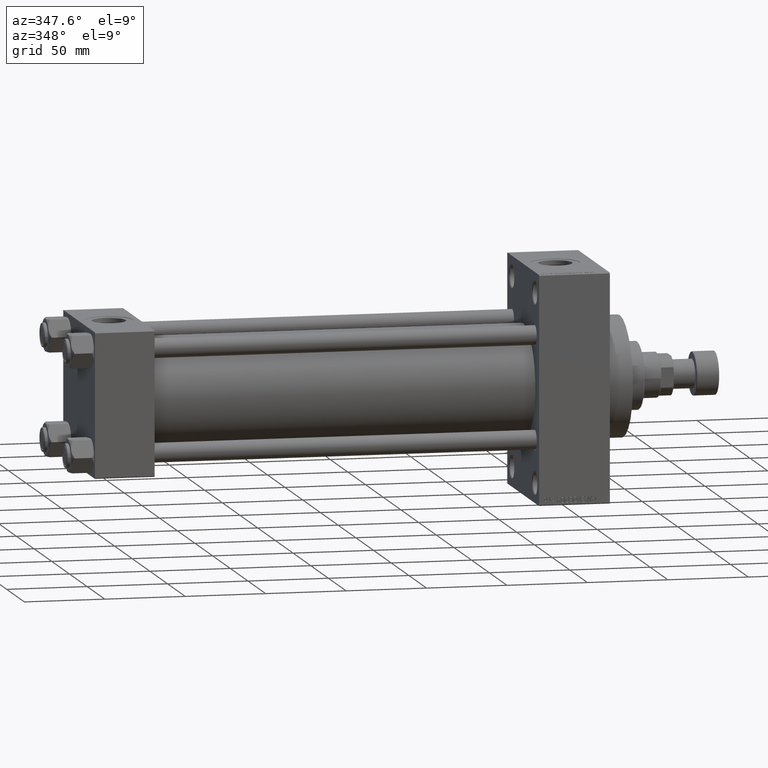
[diagram: clean part render]
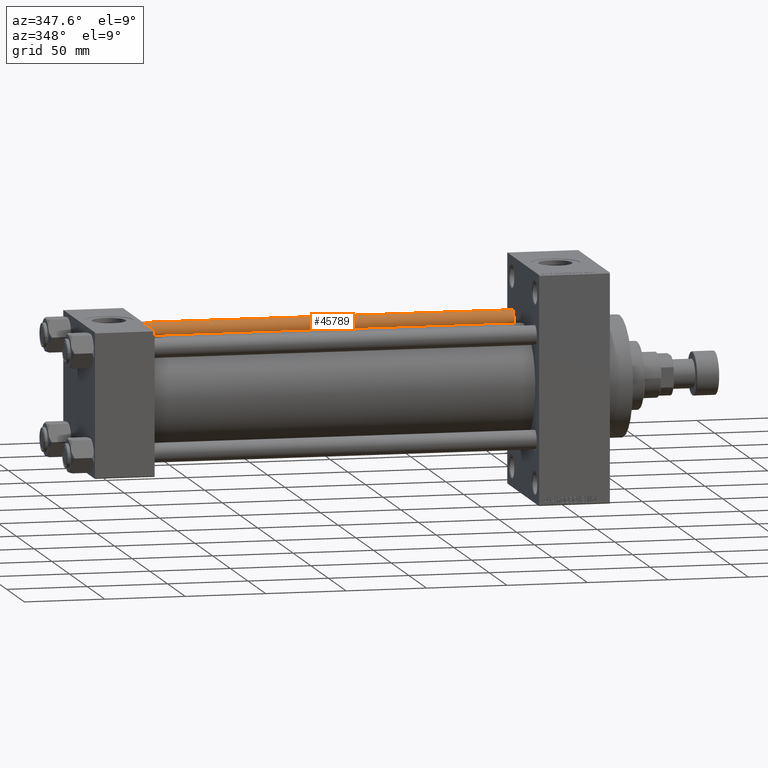
[diagram: same view with one face highlighted and labeled with its STEP entity id]
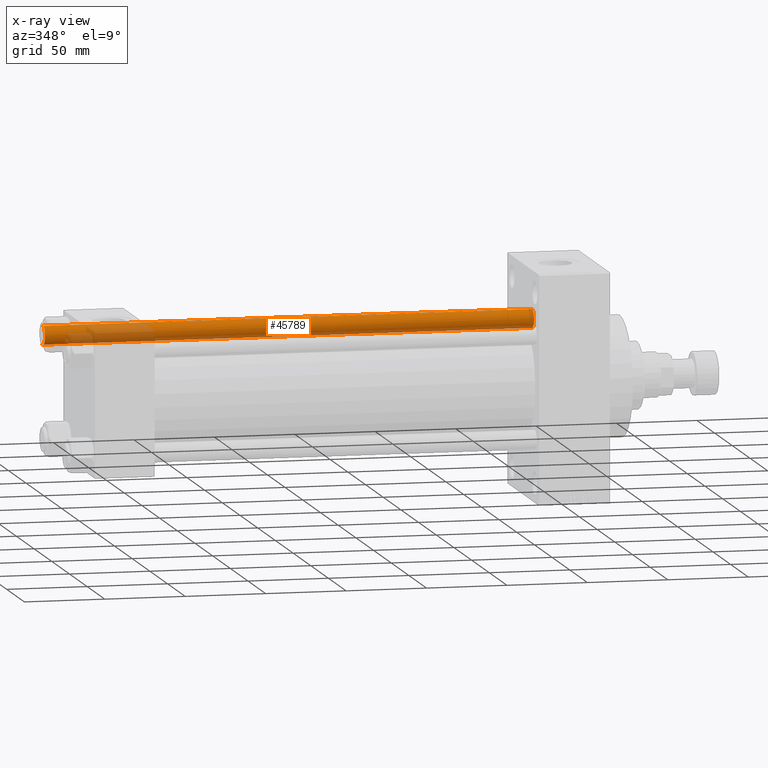
[diagram: x-ray of the same camera — body ghosted, the highlighted face saturated]
A machine part, auxiliary view. The second image highlights one B-rep face of the part: STEP entity #45789.
The next image is the same camera in x-ray: the body ghosted, the highlighted face saturated — about 27% of this face is hidden behind the body in this view.
In plain terms, the highlighted cylindrical surface (edge-blend (fillet) strip) has radius 6 mm, axis along (-1, -0, 0).
Its self-contained STEP definition (entity closure, byte-faithful):
#87 = CARTESIAN_POINT ( 'NONE',  ( 6.000000000000000888, 7.347880794884120722E-16, 304.5000000000000000 ) ) ;
#601 = VERTEX_POINT ( 'NONE', #4239 ) ;
#3996 = DIRECTION ( 'NONE',  ( -0.000000000000000000, -0.000000000000000000, -1.000000000000000000 ) ) ;
#4026 = EDGE_CURVE ( 'NONE', #13726, #9259, #10864, .T. ) ;
#4239 = CARTESIAN_POINT ( 'NONE',  ( -6.000000000000000888, 0.000000000000000000, 304.5000000000000000 ) ) ;
#5292 = DIRECTION ( 'NONE',  ( 0.000000000000000000, 0.000000000000000000, -1.000000000000000000 ) ) ;
#8496 = VECTOR ( 'NONE', #47530, 1000.000000000000000 ) ;
#8578 = DIRECTION ( 'NONE',  ( 1.000000000000000000, 0.000000000000000000, 0.000000000000000000 ) ) ;
#9259 = VERTEX_POINT ( 'NONE', #37075 ) ;
#9394 = EDGE_CURVE ( 'NONE', #46854, #9259, #36446, .T. ) ;
#10864 = LINE ( 'NONE', #20581, #8496 ) ;
#13726 = VERTEX_POINT ( 'NONE', #87 ) ;
#14170 = CARTESIAN_POINT ( 'NONE',  ( 0.000000000000000000, 0.000000000000000000, 0.5000000000000004441 ) ) ;
#15907 = DIRECTION ( 'NONE',  ( 1.000000000000000000, 0.000000000000000000, 0.000000000000000000 ) ) ;
#16971 = ORIENTED_EDGE ( 'NONE', *, *, #4026, .F. ) ;
#17667 = EDGE_CURVE ( 'NONE', #13726, #601, #24222, .T. ) ;
#18020 = DIRECTION ( 'NONE',  ( -0.000000000000000000, -0.000000000000000000, 1.000000000000000000 ) ) ;
#20539 = VECTOR ( 'NONE', #45885, 1000.000000000000000 ) ;
#20581 = CARTESIAN_POINT ( 'NONE',  ( 6.000000000000000888, 7.347880794884120722E-16, 305.0000000000000000 ) ) ;
#21879 = EDGE_CURVE ( 'NONE', #601, #46854, #27307, .T. ) ;
#23685 = CARTESIAN_POINT ( 'NONE',  ( -6.000000000000000888, 0.000000000000000000, 305.0000000000000000 ) ) ;
#24222 = CIRCLE ( 'NONE', #30414, 6.000000000000000888 ) ;
#25927 = DIRECTION ( 'NONE',  ( -1.000000000000000000, 0.000000000000000000, 0.000000000000000000 ) ) ;
#27307 = LINE ( 'NONE', #23685, #20539 ) ;
#27832 = ORIENTED_EDGE ( 'NONE', *, *, #9394, .T. ) ;
#27926 = AXIS2_PLACEMENT_3D ( 'NONE', #14170, #18020, #8578 ) ;
#29131 = AXIS2_PLACEMENT_3D ( 'NONE', #29567, #3996, #25927 ) ;
#29352 = EDGE_LOOP ( 'NONE', ( #16971, #47299, #39804, #27832 ) ) ;
#29567 = CARTESIAN_POINT ( 'NONE',  ( 0.000000000000000000, 0.000000000000000000, 305.0000000000000000 ) ) ;
#30395 = CARTESIAN_POINT ( 'NONE',  ( 0.000000000000000000, 0.000000000000000000, 304.5000000000000000 ) ) ;
#30414 = AXIS2_PLACEMENT_3D ( 'NONE', #30395, #5292, #15907 ) ;
#34374 = CYLINDRICAL_SURFACE ( 'NONE', #29131, 6.000000000000000888 ) ;
#36446 = CIRCLE ( 'NONE', #27926, 6.000000000000000888 ) ;
#37075 = CARTESIAN_POINT ( 'NONE',  ( 6.000000000000000888, 7.347880794884120722E-16, 0.5000000000000004441 ) ) ;
#37990 = FACE_OUTER_BOUND ( 'NONE', #29352, .T. ) ;
#39804 = ORIENTED_EDGE ( 'NONE', *, *, #21879, .T. ) ;
#44422 = CARTESIAN_POINT ( 'NONE',  ( -6.000000000000000888, 0.000000000000000000, 0.5000000000000004441 ) ) ;
#45789 = ADVANCED_FACE ( 'NONE', ( #37990 ), #34374, .T. ) ;
#45885 = DIRECTION ( 'NONE',  ( -0.000000000000000000, -0.000000000000000000, -1.000000000000000000 ) ) ;
#46854 = VERTEX_POINT ( 'NONE', #44422 ) ;
#47299 = ORIENTED_EDGE ( 'NONE', *, *, #17667, .T. ) ;
#47530 = DIRECTION ( 'NONE',  ( -0.000000000000000000, -0.000000000000000000, -1.000000000000000000 ) ) ;